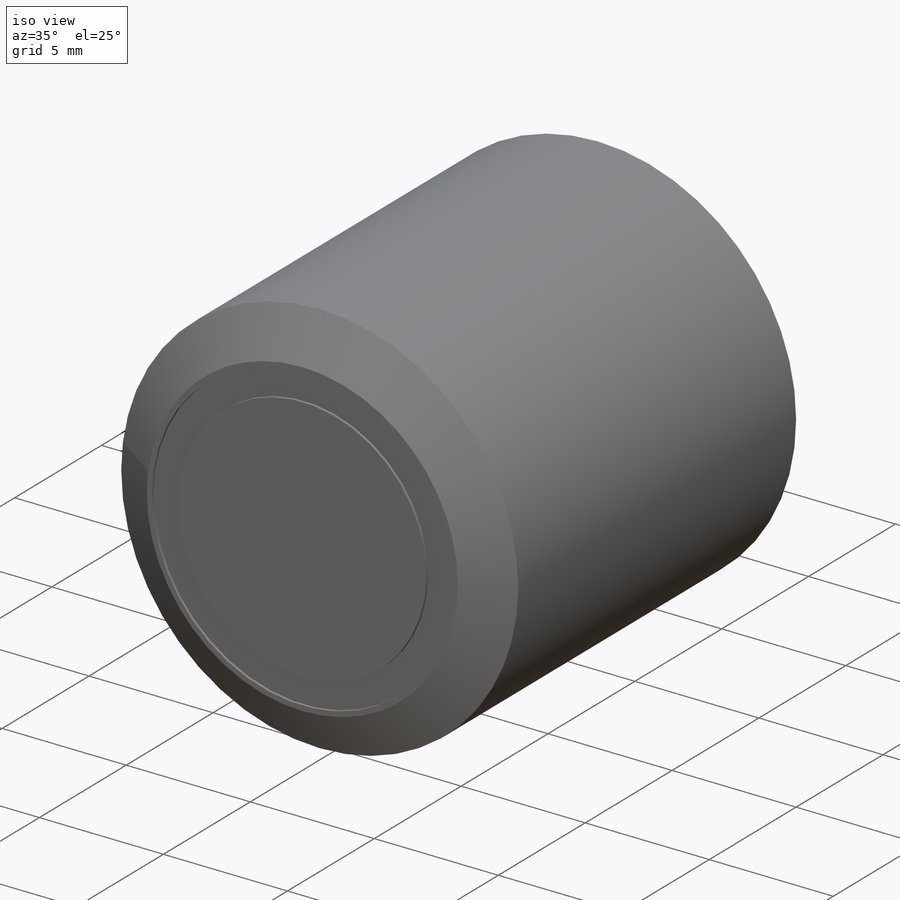
[diagram: iso view]
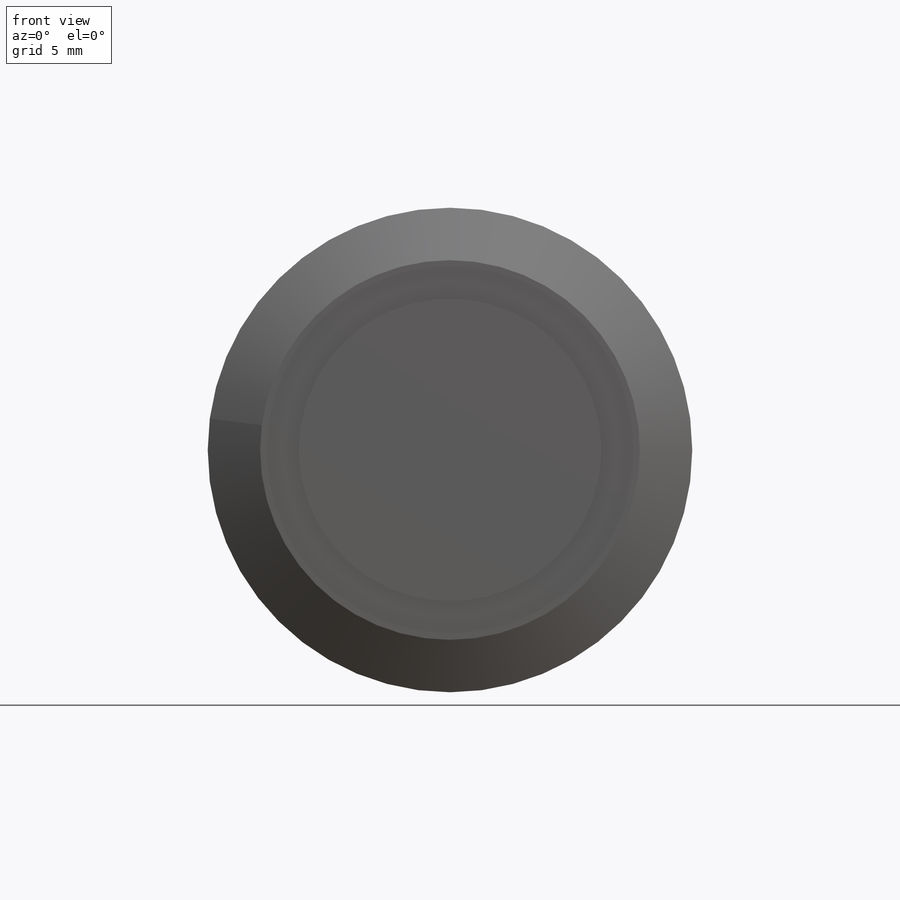
[diagram: front view]
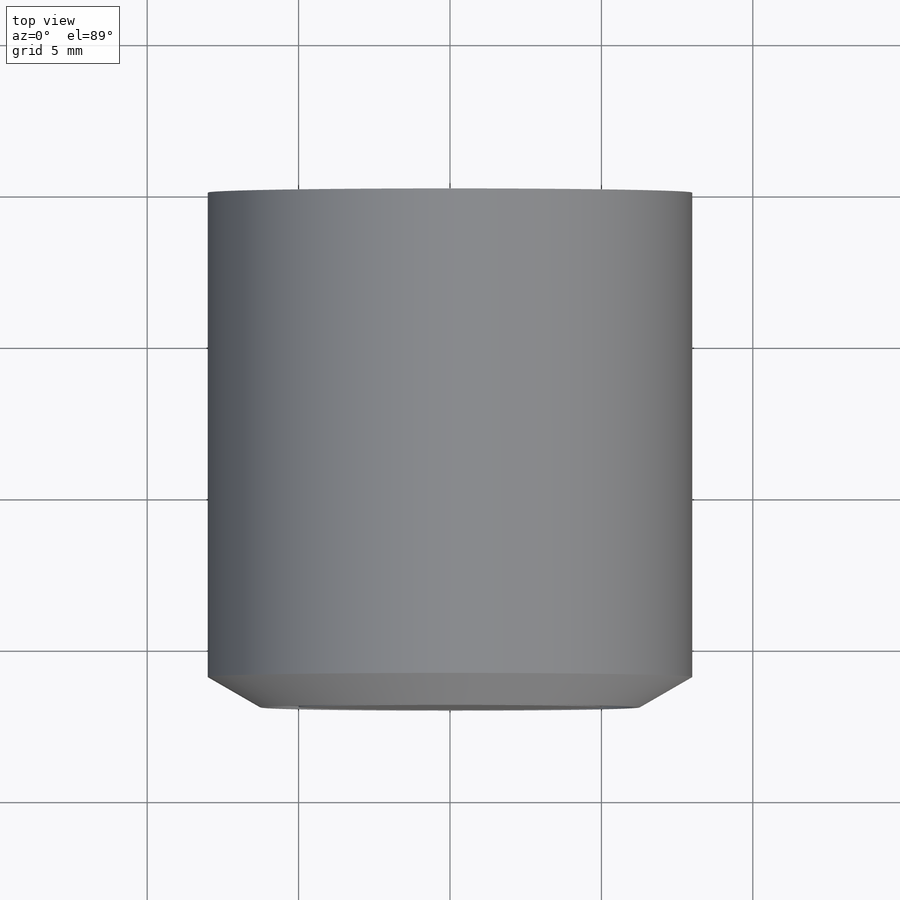
[diagram: top view]
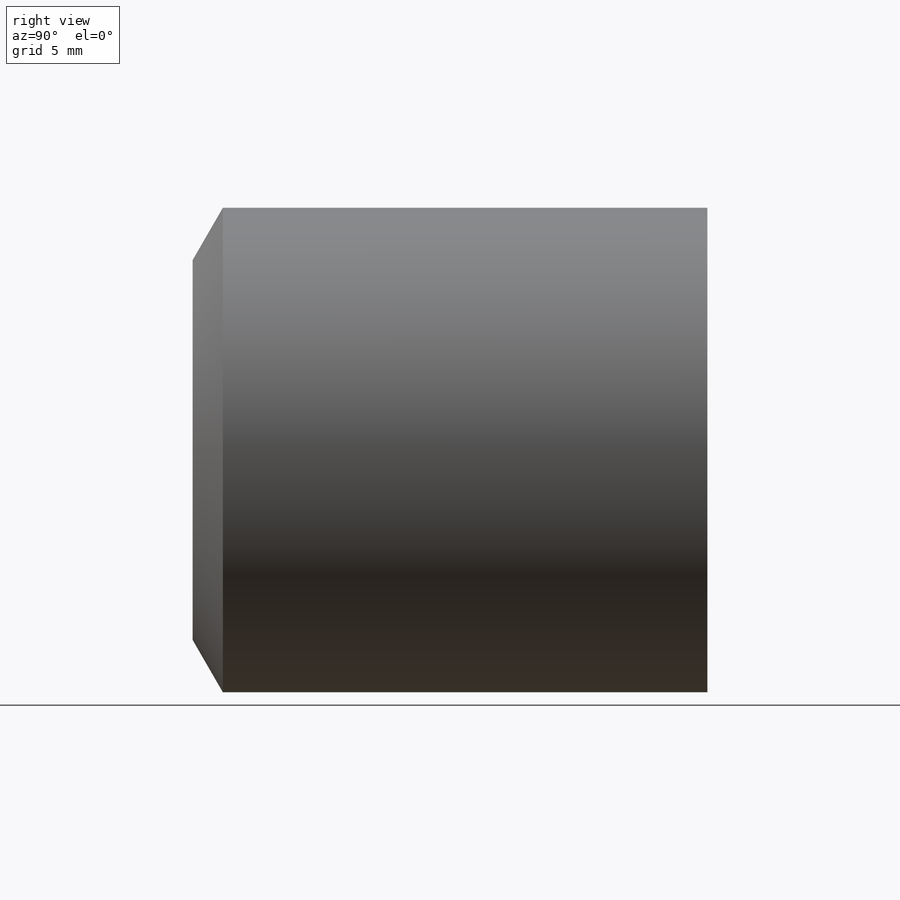
[diagram: right view]
SOLIDWORKS PART (.sldprt)
format: sldprt  version: not decoded by parser v0  size: 342,016 bytes
history: native  units: mm
features: sketch x3, extrude x2, material x1, chamfer x1, cut_extrude x1 (+11 scaffold rows collapsed)
feature tree (19):
  scaffold x11  (default folders/planes/origin — collapsed)
  material  "Material <not specified>"
  sketch  "Sketch2"  dims[D1=16.0mm]
  extrude  "Boss-Extrude1"  Depth=17mm
  chamfer  "Chamfer1"  Distance=1mm Angle=60deg
  sketch  "Sketch5"  dims[D1=~15.506914mm]
  cut_extrude  "Cut-Extrude1"  Depth=0.1mm
  sketch  "Sketch6"  dims[D1=~4.915898mm]
  extrude  "Boss-Extrude4"  Depth=0.1mm
decode coverage: 7 of 7 modeling features carry decoded parameters
note: ~ marks probable driven/reference dimensions
note: suppression state not decoded; provenance and decode notes live in map.json
